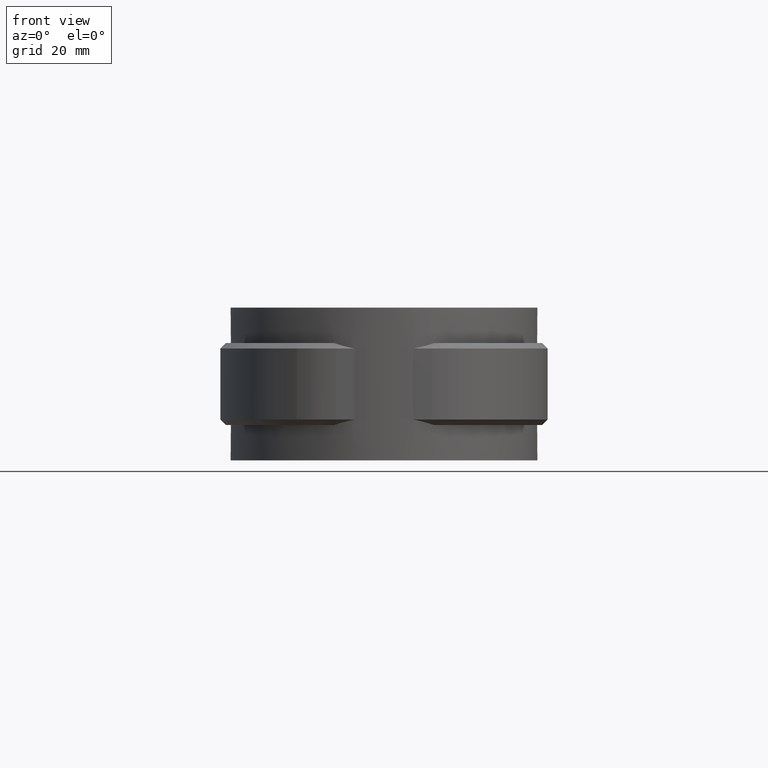
[diagram: clean part render]
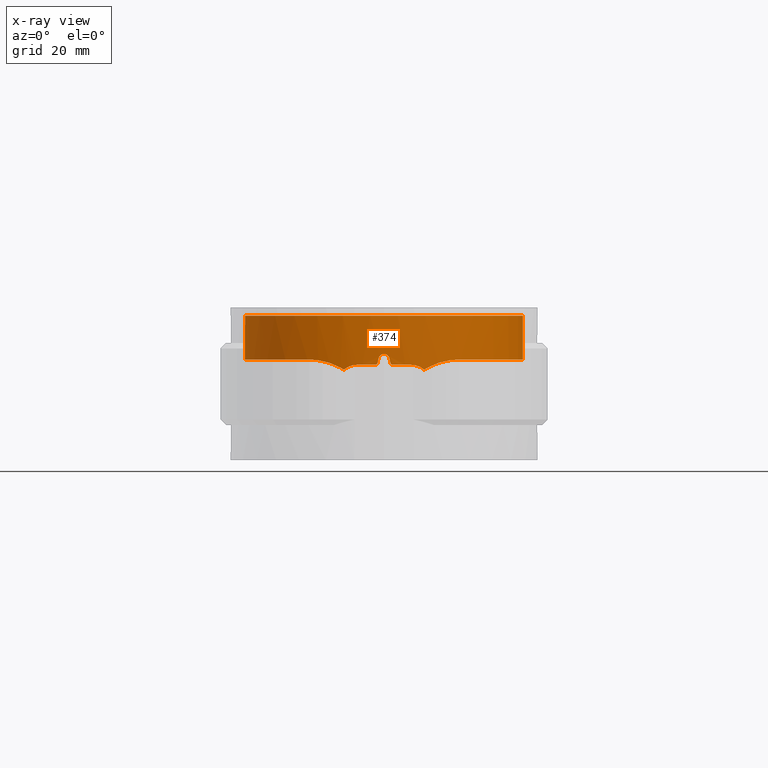
[diagram: x-ray — body ghosted, one internal face saturated and labeled with its STEP entity id]
A machine part, front view, then the same camera in x-ray: the body is ghosted and one INTERNAL B-rep face — a face not visible from any outside direction — is saturated and labeled: STEP entity #374.
In plain terms, the highlighted cylindrical surface (partial cylindrical patch) has radius 25.5 mm, axis along (0, 0, 1).
Its self-contained STEP definition (entity closure, byte-faithful):
#374 = ADVANCED_FACE( '', ( #734 ), #735, .F. );
#734 = FACE_OUTER_BOUND( '', #1649, .T. );
#735 = CYLINDRICAL_SURFACE( '', #1650, 25.5000000000000 );
#1649 = EDGE_LOOP( '', ( #3257, #3258, #3259, #3260, #3261, #3262, #3263, #3264, #3265, #3266, #3267, #3268, #3269, #3270, #3271, #3272, #3273, #3274 ) );
#1650 = AXIS2_PLACEMENT_3D( '', #3275, #3276, #3277 );
#3257 = ORIENTED_EDGE( '', *, *, #6988, .T. );
#3258 = ORIENTED_EDGE( '', *, *, #6953, .T. );
#3259 = ORIENTED_EDGE( '', *, *, #6955, .T. );
#3260 = ORIENTED_EDGE( '', *, *, #6989, .T. );
#3261 = ORIENTED_EDGE( '', *, *, #6990, .T. );
#3262 = ORIENTED_EDGE( '', *, *, #6991, .T. );
#3263 = ORIENTED_EDGE( '', *, *, #6992, .T. );
#3264 = ORIENTED_EDGE( '', *, *, #6993, .T. );
#3265 = ORIENTED_EDGE( '', *, *, #6994, .T. );
#3266 = ORIENTED_EDGE( '', *, *, #6995, .T. );
#3267 = ORIENTED_EDGE( '', *, *, #6996, .T. );
#3268 = ORIENTED_EDGE( '', *, *, #6997, .T. );
#3269 = ORIENTED_EDGE( '', *, *, #6975, .T. );
#3270 = ORIENTED_EDGE( '', *, *, #6998, .F. );
#3271 = ORIENTED_EDGE( '', *, *, #6940, .T. );
#3272 = ORIENTED_EDGE( '', *, *, #6999, .T. );
#3273 = ORIENTED_EDGE( '', *, *, #6971, .T. );
#3274 = ORIENTED_EDGE( '', *, *, #6983, .T. );
#3275 = CARTESIAN_POINT( '', ( 0.000000000000000, 0.000000000000000, 0.000000000000000 ) );
#3276 = DIRECTION( '', ( 0.000000000000000, 0.000000000000000, 1.00000000000000 ) );
#3277 = DIRECTION( '', ( 1.00000000000000, -6.12303176911189E-017, 0.000000000000000 ) );
#6940 = EDGE_CURVE( '', #7938, #7936, #7939, .T. );
#6953 = EDGE_CURVE( '', #7944, #7961, #7963, .T. );
#6955 = EDGE_CURVE( '', #7961, #7964, #7966, .T. );
#6971 = EDGE_CURVE( '', #7994, #7992, #7995, .T. );
#6975 = EDGE_CURVE( '', #8001, #8002, #8003, .T. );
#6983 = EDGE_CURVE( '', #7992, #8015, #8017, .T. );
#6988 = EDGE_CURVE( '', #8015, #7944, #8025, .T. );
#6989 = EDGE_CURVE( '', #7964, #8026, #8027, .T. );
#6990 = EDGE_CURVE( '', #8026, #8028, #8029, .T. );
#6991 = EDGE_CURVE( '', #8028, #8030, #8031, .T. );
#6992 = EDGE_CURVE( '', #8030, #8032, #8033, .T. );
#6993 = EDGE_CURVE( '', #8032, #8034, #8035, .T. );
#6994 = EDGE_CURVE( '', #8034, #8036, #8037, .T. );
#6995 = EDGE_CURVE( '', #8036, #8038, #8039, .T. );
#6996 = EDGE_CURVE( '', #8038, #8040, #8041, .T. );
#6997 = EDGE_CURVE( '', #8040, #8001, #8042, .T. );
#6998 = EDGE_CURVE( '', #7938, #8002, #8043, .T. );
#6999 = EDGE_CURVE( '', #7936, #7994, #8044, .T. );
#7936 = VERTEX_POINT( '', #9702 );
#7938 = VERTEX_POINT( '', #9704 );
#7939 = CIRCLE( '', #9705, 25.5000000000000 );
#7944 = VERTEX_POINT( '', #9711 );
#7961 = VERTEX_POINT( '', #9785 );
#7963 = B_SPLINE_CURVE_WITH_KNOTS( '', 3, ( #9788, #9789, #9790, #9791, #9792, #9793, #9794, #9795, #9796, #9797 ), .UNSPECIFIED., .F., .F., ( 4, 2, 2, 2, 4 ), ( 0.00850208511020804, 0.00915846737097784, 0.00981484963174765, 0.0104712318925175, 0.0111276141532873 ), .UNSPECIFIED. );
#7964 = VERTEX_POINT( '', #9798 );
#7966 = CIRCLE( '', #9801, 25.5000000000000 );
#7992 = VERTEX_POINT( '', #10073 );
#7994 = VERTEX_POINT( '', #10081 );
#7995 = B_SPLINE_CURVE_WITH_KNOTS( '', 3, ( #10082, #10083, #10084, #10085, #10086, #10087, #10088, #10089, #10090, #10091, #10092, #10093, #10094, #10095, #10096, #10097, #10098, #10099, #10100, #10101, #10102, #10103, #10104, #10105, #10106, #10107, #10108, #10109, #10110, #10111, #10112, #10113, #10114, #10115, #10116, #10117, #10118, #10119, #10120, #10121, #10122, #10123 ), .UNSPECIFIED., .F., .F., ( 4, 2, 2, 2, 2, 2, 2, 2, 2, 2, 2, 2, 2, 2, 2, 2, 2, 2, 2, 2, 4 ), ( 3.46944695195361E-018, 0.00367893654871731, 0.00735787309743462, 0.00919734137179327, 0.0110368096461519, 0.0147157461948692, 0.0165552144692279, 0.0183946827435865, 0.0220736192923038, 0.0257525558410211, 0.0294314923897385, 0.0331104289384558, 0.0349498972128144, 0.0367893654871731, 0.0404683020358904, 0.0423077703102490, 0.0441472385846077, 0.0478261751333250, 0.0515051116820423, 0.0551840482307596, 0.0588629847794769 ), .UNSPECIFIED. );
#8001 = VERTEX_POINT( '', #10159 );
#8002 = VERTEX_POINT( '', #10160 );
#8003 = B_SPLINE_CURVE_WITH_KNOTS( '', 3, ( #10161, #10162, #10163, #10164, #10165, #10166, #10167, #10168, #10169, #10170, #10171, #10172, #10173, #10174, #10175, #10176, #10177, #10178, #10179, #10180, #10181, #10182, #10183, #10184, #10185, #10186, #10187, #10188, #10189, #10190, #10191, #10192, #10193, #10194, #10195, #10196, #10197, #10198, #10199, #10200, #10201, #10202 ), .UNSPECIFIED., .F., .F., ( 4, 2, 2, 2, 2, 2, 2, 2, 2, 2, 2, 2, 2, 2, 2, 2, 2, 2, 2, 2, 4 ), ( 9.81307786677359E-018, 0.00367893687146762, 0.00735787374293522, 0.00919734217866903, 0.0110368106144028, 0.0147157474858705, 0.0165552159216043, 0.0183946843573381, 0.0220736212288057, 0.0257525581002733, 0.0294314949717409, 0.0331104318432085, 0.0349499002789423, 0.0367893687146762, 0.0404683055861438, 0.0423077740218776, 0.0441472424576114, 0.0478261793290790, 0.0515051162005466, 0.0551840530720142, 0.0588629899434818 ), .UNSPECIFIED. );
#8015 = VERTEX_POINT( '', #10295 );
#8017 = B_SPLINE_CURVE_WITH_KNOTS( '', 3, ( #10301, #10302, #10303, #10304, #10305, #10306, #10307, #10308, #10309, #10310 ), .UNSPECIFIED., .F., .F., ( 4, 2, 2, 2, 4 ), ( 3.46944695195361E-018, 0.00173657544033169, 0.00347315088066339, 0.00520972632099508, 0.00694630176132677 ), .UNSPECIFIED. );
#8025 = B_SPLINE_CURVE_WITH_KNOTS( '', 3, ( #10337, #10338, #10339, #10340 ), .UNSPECIFIED., .F., .F., ( 4, 4 ), ( 2.30978935673937E-016, 0.000798238028061285 ), .UNSPECIFIED. );
#8026 = VERTEX_POINT( '', #10341 );
#8027 = B_SPLINE_CURVE_WITH_KNOTS( '', 3, ( #10342, #10343, #10344, #10345, #10346, #10347 ), .UNSPECIFIED., .F., .F., ( 4, 2, 4 ), ( 8.20849171219253E-018, 0.000336083199100263, 0.000672166398200517 ), .UNSPECIFIED. );
#8028 = VERTEX_POINT( '', #10348 );
#8029 = ELLIPSE( '', #10349, 116.166725925970, 25.5000000000000 );
#8030 = VERTEX_POINT( '', #10350 );
#8031 = B_SPLINE_CURVE_WITH_KNOTS( '', 3, ( #10351, #10352, #10353, #10354, #10355, #10356, #10357, #10358, #10359, #10360 ), .UNSPECIFIED., .F., .F., ( 4, 2, 2, 2, 4 ), ( 1.08420217248550E-019, 0.000671619266939462, 0.00134323853387892, 0.00201485780081838, 0.00268647706775785 ), .UNSPECIFIED. );
#8032 = VERTEX_POINT( '', #10361 );
#8033 = ELLIPSE( '', #10362, 116.166785185313, 25.5000000000000 );
#8034 = VERTEX_POINT( '', #10363 );
#8035 = B_SPLINE_CURVE_WITH_KNOTS( '', 3, ( #10364, #10365, #10366, #10367, #10368, #10369 ), .UNSPECIFIED., .F., .F., ( 4, 2, 4 ), ( 2.04566856771261E-018, 0.000336089115589765, 0.000672178231179528 ), .UNSPECIFIED. );
#8036 = VERTEX_POINT( '', #10370 );
#8037 = CIRCLE( '', #10371, 25.5000000000000 );
#8038 = VERTEX_POINT( '', #10372 );
#8039 = B_SPLINE_CURVE_WITH_KNOTS( '', 3, ( #10373, #10374, #10375, #10376, #10377, #10378, #10379, #10380, #10381, #10382 ), .UNSPECIFIED., .F., .F., ( 4, 2, 2, 2, 4 ), ( 2.60208521396521E-018, 0.000657020620494566, 0.00131404124098913, 0.00197106186148369, 0.00262808248197826 ), .UNSPECIFIED. );
#8040 = VERTEX_POINT( '', #10383 );
#8041 = B_SPLINE_CURVE_WITH_KNOTS( '', 3, ( #10384, #10385, #10386, #10387 ), .UNSPECIFIED., .F., .F., ( 4, 4 ), ( 0.00811585301675410, 0.00891486322571208 ), .UNSPECIFIED. );
#8042 = B_SPLINE_CURVE_WITH_KNOTS( '', 3, ( #10388, #10389, #10390, #10391, #10392, #10393, #10394, #10395, #10396, #10397 ), .UNSPECIFIED., .F., .F., ( 4, 2, 2, 2, 4 ), ( 1.73472347597681E-018, 0.00172797127034804, 0.00345594254069608, 0.00518391381104412, 0.00691188508139215 ), .UNSPECIFIED. );
#8043 = LINE( '', #10398, #10399 );
#8044 = LINE( '', #10400, #10401 );
#9702 = CARTESIAN_POINT( '', ( 6.02727272727272, 24.7774490912821, 0.000000000000000 ) );
#9704 = CARTESIAN_POINT( '', ( -6.02727272727273, 24.7774490912821, 0.000000000000000 ) );
#9705 = AXIS2_PLACEMENT_3D( '', #13616, #13617, #13618 );
#9711 = CARTESIAN_POINT( '', ( 7.34939546607403, -24.4179521312195, -9.90570993449255 ) );
#9785 = CARTESIAN_POINT( '', ( 5.00000000000000, -25.0049995001000, -9.00000000000000 ) );
#9788 = CARTESIAN_POINT( '', ( 7.34939546607647, -24.4179521312336, -9.90570993449475 ) );
#9789 = CARTESIAN_POINT( '', ( 7.19002830042956, -24.4659189844059, -9.76138663719246 ) );
#9790 = CARTESIAN_POINT( '', ( 7.01934867853847, -24.5155951669858, -9.63330824911260 ) );
#9791 = CARTESIAN_POINT( '', ( 6.65548995696407, -24.6168664881457, -9.40887663097829 ) );
#9792 = CARTESIAN_POINT( '', ( 6.46069820901420, -24.6688392725412, -9.31221188509042 ) );
#9793 = CARTESIAN_POINT( '', ( 6.06217657366655, -24.7697853763839, -9.15823201737013 ) );
#9794 = CARTESIAN_POINT( '', ( 5.85712685122793, -24.8191636452639, -9.09978998882263 ) );
#9795 = CARTESIAN_POINT( '', ( 5.43511411233680, -24.9149825122885, -9.02052155223629 ) );
#9796 = CARTESIAN_POINT( '', ( 5.21770426459036, -24.9614673527409, -8.99999999999997 ) );
#9797 = CARTESIAN_POINT( '', ( 5.00000000000000, -25.0049995001000, -8.99999999999997 ) );
#9798 = CARTESIAN_POINT( '', ( 1.64999999999995, -25.4465616537873, -9.00000000000000 ) );
#9801 = AXIS2_PLACEMENT_3D( '', #13626, #13627, #13628 );
#10073 = CARTESIAN_POINT( '', ( 14.0380773796952, -21.2880807843660, -8.00256714084616 ) );
#10081 = CARTESIAN_POINT( '', ( 6.02727272727272, 24.7774490912821, -8.00435030719461 ) );
#10082 = CARTESIAN_POINT( '', ( 6.02727272727272, 24.7774490912821, -8.00435030719460 ) );
#10083 = CARTESIAN_POINT( '', ( 7.23599043617387, 24.4834207893777, -8.00648047280333 ) );
#10084 = CARTESIAN_POINT( '', ( 8.40833073396198, 24.1050752320822, -8.00960165786446 ) );
#10085 = CARTESIAN_POINT( '', ( 10.6832558674306, 23.1866927729472, -8.01318213386109 ) );
#10086 = CARTESIAN_POINT( '', ( 11.7858329233706, 22.6466378563930, -8.01365063241761 ) );
#10087 = CARTESIAN_POINT( '', ( 13.3862508932498, 21.7126645761644, -8.01194020932682 ) );
#10088 = CARTESIAN_POINT( '', ( 13.9128744927420, 21.3790956027200, -8.01099314390399 ) );
#10089 = CARTESIAN_POINT( '', ( 14.9346540631046, 20.6782473497254, -8.00870389442224 ) );
#10090 = CARTESIAN_POINT( '', ( 15.4301058098800, 20.3110731277476, -8.00736616175202 ) );
#10091 = CARTESIAN_POINT( '', ( 16.8712199239447, 19.1604636138356, -8.00364013782481 ) );
#10092 = CARTESIAN_POINT( '', ( 17.7718715818085, 18.3281911366352, -8.00192910382054 ) );
#10093 = CARTESIAN_POINT( '', ( 19.0326615365575, 16.9819256063667, -8.00325822963941 ) );
#10094 = CARTESIAN_POINT( '', ( 19.4378359745583, 16.5167986474918, -8.00410926809196 ) );
#10095 = CARTESIAN_POINT( '', ( 20.2172730657249, 15.5530053276380, -8.00596291424165 ) );
#10096 = CARTESIAN_POINT( '', ( 20.5911038168385, 15.0544916301788, -8.00696233647980 ) );
#10097 = CARTESIAN_POINT( '', ( 21.6478825447636, 13.5330809457384, -8.00941485428378 ) );
#10098 = CARTESIAN_POINT( '', ( 22.2730579252557, 12.4766092997537, -8.01022551509677 ) );
#10099 = CARTESIAN_POINT( '', ( 23.3678649736153, 10.2809423466617, -8.00918317122034 ) );
#10100 = CARTESIAN_POINT( '', ( 23.8378586430602, 9.14070903084015, -8.00732483371213 ) );
#10101 = CARTESIAN_POINT( '', ( 24.6140797702939, 6.77813715814395, -8.00356538833633 ) );
#10102 = CARTESIAN_POINT( '', ( 24.9115322156420, 5.58301647356335, -8.00198911275021 ) );
#10103 = CARTESIAN_POINT( '', ( 25.3323822198717, 3.16621561827068, -8.00374588587573 ) );
#10104 = CARTESIAN_POINT( '', ( 25.4557627807475, 1.94453246483196, -8.00619494150133 ) );
#10105 = CARTESIAN_POINT( '', ( 25.5073199262339, 0.0916323898620054, -8.00875896915986 ) );
#10106 = CARTESIAN_POINT( '', ( 25.5019716075597, -0.531937079970103, -8.00945183909588 ) );
#10107 = CARTESIAN_POINT( '', ( 25.4460859163681, -1.76924403818120, -8.01022075164433 ) );
#10108 = CARTESIAN_POINT( '', ( 25.3957817943379, -2.38369131147523, -8.01030010625810 ) );
#10109 = CARTESIAN_POINT( '', ( 25.1793005739384, -4.21469945113369, -8.00960044908886 ) );
#10110 = CARTESIAN_POINT( '', ( 24.9478887611008, -5.41898940567201, -8.00777838101161 ) );
#10111 = CARTESIAN_POINT( '', ( 24.4699097122901, -7.20081027566577, -8.00488788943961 ) );
#10112 = CARTESIAN_POINT( '', ( 24.2886897740294, -7.79063256149351, -8.00392447499050 ) );
#10113 = CARTESIAN_POINT( '', ( 23.8813713223785, -8.96183633023490, -8.00263638335562 ) );
#10114 = CARTESIAN_POINT( '', ( 23.6553997221500, -9.54217470382321, -8.00235062104054 ) );
#10115 = CARTESIAN_POINT( '', ( 22.9212815692395, -11.2422856926676, -8.00347753568806 ) );
#10116 = CARTESIAN_POINT( '', ( 22.3541015416671, -12.3308245985621, -8.00625745362341 ) );
#10117 = CARTESIAN_POINT( '', ( 21.0671094039184, -14.4198471690583, -8.01034287151952 ) );
#10118 = CARTESIAN_POINT( '', ( 20.3460259093578, -15.4218763635057, -8.01164285375984 ) );
#10119 = CARTESIAN_POINT( '', ( 18.7496539580305, -17.3275941010177, -8.01098931174753 ) );
#10120 = CARTESIAN_POINT( '', ( 17.8905079229677, -18.2124564405394, -8.00904794289999 ) );
#10121 = CARTESIAN_POINT( '', ( 16.0539679187838, -19.8502885974732, -8.00459418441659 ) );
#10122 = CARTESIAN_POINT( '', ( 15.0765755120066, -20.6032601428188, -8.00207340656820 ) );
#10123 = CARTESIAN_POINT( '', ( 14.0380773796952, -21.2880807843660, -8.00256714084614 ) );
#10159 = CARTESIAN_POINT( '', ( -14.0380773796952, -21.2880807843660, -8.00256714084616 ) );
#10160 = CARTESIAN_POINT( '', ( -6.02727272727275, 24.7774490912821, -8.00435030719460 ) );
#10161 = CARTESIAN_POINT( '', ( -14.0380773796952, -21.2880807843660, -8.00256714084622 ) );
#10162 = CARTESIAN_POINT( '', ( -15.0765748335687, -20.6032605902037, -8.00207340689083 ) );
#10163 = CARTESIAN_POINT( '', ( -16.0523639473271, -19.8513548135207, -8.00459036403530 ) );
#10164 = CARTESIAN_POINT( '', ( -17.8836958658101, -18.2188939952168, -8.00903135403917 ) );
#10165 = CARTESIAN_POINT( '', ( -18.7392252450658, -17.3383246082448, -8.01096774511733 ) );
#10166 = CARTESIAN_POINT( '', ( -19.9303857377763, -15.9188956933257, -8.01148110754755 ) );
#10167 = CARTESIAN_POINT( '', ( -20.3134828182761, -15.4271260931492, -8.01128025687242 ) );
#10168 = CARTESIAN_POINT( '', ( -21.0386748467039, -14.4224812149986, -8.01020889057149 ) );
#10169 = CARTESIAN_POINT( '', ( -21.3810845038201, -13.9096038910828, -8.00934322425378 ) );
#10170 = CARTESIAN_POINT( '', ( -22.3491571729683, -12.3400402561434, -8.00627899012387 ) );
#10171 = CARTESIAN_POINT( '', ( -22.9159649377144, -11.2525798041515, -8.00350407266921 ) );
#10172 = CARTESIAN_POINT( '', ( -23.6482491570491, -9.55972343349782, -8.00235259351094 ) );
#10173 = CARTESIAN_POINT( '', ( -23.8726141413114, -8.98512090568258, -8.00261977236998 ) );
#10174 = CARTESIAN_POINT( '', ( -24.2809248362162, -7.81478040175771, -8.00388927620166 ) );
#10175 = CARTESIAN_POINT( '', ( -24.4645155229831, -7.21933194521091, -8.00485791612356 ) );
#10176 = CARTESIAN_POINT( '', ( -24.9456398910394, -5.43048289420762, -8.00775959323832 ) );
#10177 = CARTESIAN_POINT( '', ( -25.1774584165853, -4.22498207278109, -8.00958799193542 ) );
#10178 = CARTESIAN_POINT( '', ( -25.4667570883330, -1.78862216190127, -8.01053593061586 ) );
#10179 = CARTESIAN_POINT( '', ( -25.5242275512407, -0.556664814739370, -8.00964804073775 ) );
#10180 = CARTESIAN_POINT( '', ( -25.4572985075182, 1.92925387199237, -8.00622397376219 ) );
#10181 = CARTESIAN_POINT( '', ( -25.3338276137651, 3.15463021899782, -8.00376500142650 ) );
#10182 = CARTESIAN_POINT( '', ( -24.9140823583699, 5.57162576120669, -8.00198679981767 ) );
#10183 = CARTESIAN_POINT( '', ( -24.6177909264119, 6.76324171536864, -8.00354427372976 ) );
#10184 = CARTESIAN_POINT( '', ( -24.0407996273683, 8.52477098965043, -8.00634346301506 ) );
#10185 = CARTESIAN_POINT( '', ( -23.8252540906671, 9.10992766866603, -8.00731782038835 ) );
#10186 = CARTESIAN_POINT( '', ( -23.3549453192577, 10.2557322384927, -8.00886216294284 ) );
#10187 = CARTESIAN_POINT( '', ( -23.1001622816006, 10.8171263074039, -8.00943360835258 ) );
#10188 = CARTESIAN_POINT( '', ( -22.2782570688612, 12.4675634315691, -8.01022930180090 ) );
#10189 = CARTESIAN_POINT( '', ( -21.6538720806443, 13.5230333142732, -8.00942431553697 ) );
#10190 = CARTESIAN_POINT( '', ( -20.6024251696231, 15.0388905393996, -8.00699078506972 ) );
#10191 = CARTESIAN_POINT( '', ( -20.2327247852361, 15.5329087892142, -8.00600289559682 ) );
#10192 = CARTESIAN_POINT( '', ( -19.4539299472975, 16.4978488687100, -8.00414443728875 ) );
#10193 = CARTESIAN_POINT( '', ( -19.0453063875102, 16.9678325370193, -8.00327935129466 ) );
#10194 = CARTESIAN_POINT( '', ( -17.7803400055229, 18.3203071721486, -8.00192275643557 ) );
#10195 = CARTESIAN_POINT( '', ( -16.8789739270039, 19.1534679280417, -8.00362196790979 ) );
#10196 = CARTESIAN_POINT( '', ( -14.9622992328879, 20.6853739672388, -8.00857382474504 ) );
#10197 = CARTESIAN_POINT( '', ( -13.9452719100082, 21.3851451340507, -8.01132449803803 ) );
#10198 = CARTESIAN_POINT( '', ( -11.7992644014956, 22.6400618513306, -8.01365421465965 ) );
#10199 = CARTESIAN_POINT( '', ( -10.6918342745611, 23.1829359891876, -8.01319224678382 ) );
#10200 = CARTESIAN_POINT( '', ( -8.41019594682173, 24.1046146073633, -8.00960796655416 ) );
#10201 = CARTESIAN_POINT( '', ( -7.23598862404177, 24.4834212301904, -8.00648046960975 ) );
#10202 = CARTESIAN_POINT( '', ( -6.02727272727273, 24.7774490912821, -8.00435030719461 ) );
#10295 = CARTESIAN_POINT( '', ( 8.00834492137894, -24.2098412142710, -9.50509198069079 ) );
#10301 = CARTESIAN_POINT( '', ( 14.0380773796952, -21.2880807843660, -8.00256714084617 ) );
#10302 = CARTESIAN_POINT( '', ( 13.5533081799099, -21.6077539200897, -8.01158658802493 ) );
#10303 = CARTESIAN_POINT( '', ( 13.0599904453706, -21.9093280854432, -8.04374183318711 ) );
#10304 = CARTESIAN_POINT( '', ( 12.0570345764823, -22.4768753346694, -8.15898000554412 ) );
#10305 = CARTESIAN_POINT( '', ( 11.5460437637076, -22.7433785813847, -8.24235852946532 ) );
#10306 = CARTESIAN_POINT( '', ( 10.5222652635921, -23.2347655381380, -8.47099233953589 ) );
#10307 = CARTESIAN_POINT( '', ( 10.0056174788121, -23.4614129377732, -8.61688839015065 ) );
#10308 = CARTESIAN_POINT( '', ( 8.98850884475527, -23.8695828810807, -8.99045959509709 ) );
#10309 = CARTESIAN_POINT( '', ( 8.48867257435765, -24.0509541944727, -9.21620899507361 ) );
#10310 = CARTESIAN_POINT( '', ( 8.00834492137896, -24.2098412142711, -9.50509198069114 ) );
#10337 = CARTESIAN_POINT( '', ( 8.00834492137897, -24.2098412142712, -9.50509198069118 ) );
#10338 = CARTESIAN_POINT( '', ( 7.78678672940039, -24.2831301881979, -9.63391701784471 ) );
#10339 = CARTESIAN_POINT( '', ( 7.56687878413544, -24.3524932875475, -9.76706377273428 ) );
#10340 = CARTESIAN_POINT( '', ( 7.34939546609056, -24.4179521312293, -9.90570993451342 ) );
#10341 = CARTESIAN_POINT( '', ( 1.16219499999999, -25.4735019732658, -8.60975599999999 ) );
#10342 = CARTESIAN_POINT( '', ( 1.64999999999995, -25.4465616537873, -8.99999999999995 ) );
#10343 = CARTESIAN_POINT( '', ( 1.53659991012920, -25.4539147158958, -9.00000000048666 ) );
#10344 = CARTESIAN_POINT( '', ( 1.42648680398588, -25.4602242781617, -8.96144237442400 ) );
#10345 = CARTESIAN_POINT( '', ( 1.24913749967912, -25.4695414250657, -8.81968188091255 ) );
#10346 = CARTESIAN_POINT( '', ( 1.18713991437309, -25.4723638943793, -8.72062228832456 ) );
#10347 = CARTESIAN_POINT( '', ( 1.16219499999999, -25.4735019732658, -8.60975599999999 ) );
#10348 = CARTESIAN_POINT( '', ( 0.975609757981813, -25.4813301379683, -7.78048781325256 ) );
#10349 = AXIS2_PLACEMENT_3D( '', #13629, #13630, #13631 );
#10350 = CARTESIAN_POINT( '', ( -0.975610000000026, -25.4813301287021, -7.78048800000004 ) );
#10351 = CARTESIAN_POINT( '', ( 0.975609757981816, -25.4813301379683, -7.78048781325256 ) );
#10352 = CARTESIAN_POINT( '', ( 0.925760627941450, -25.4832387234868, -7.55893621431624 ) );
#10353 = CARTESIAN_POINT( '', ( 0.802002231077809, -25.4880019776319, -7.36098152789277 ) );
#10354 = CARTESIAN_POINT( '', ( 0.447412249788038, -25.4966914455417, -7.07730044565886 ) );
#10355 = CARTESIAN_POINT( '', ( 0.227096997064036, -25.5000000081517, -6.99999981140865 ) );
#10356 = CARTESIAN_POINT( '', ( -0.227098827707840, -25.4999999918483, -7.00000018172440 ) );
#10357 = CARTESIAN_POINT( '', ( -0.447442086841618, -25.4966908125914, -7.07731897433820 ) );
#10358 = CARTESIAN_POINT( '', ( -0.802000627794619, -25.4880019186867, -7.36098526735058 ) );
#10359 = CARTESIAN_POINT( '', ( -0.925760910065686, -25.4832387131592, -7.55893638128833 ) );
#10360 = CARTESIAN_POINT( '', ( -0.975610000000027, -25.4813301287021, -7.78048800000004 ) );
#10361 = CARTESIAN_POINT( '', ( -1.16219512100914, -25.4735019677449, -8.60975609337373 ) );
#10362 = AXIS2_PLACEMENT_3D( '', #13632, #13633, #13634 );
#10363 = CARTESIAN_POINT( '', ( -1.65000000000003, -25.4465616537873, -9.00000000000000 ) );
#10364 = CARTESIAN_POINT( '', ( -1.16219512100915, -25.4735019677449, -8.60975609337372 ) );
#10365 = CARTESIAN_POINT( '', ( -1.18714002699007, -25.4723638891226, -8.72062234662147 ) );
#10366 = CARTESIAN_POINT( '', ( -1.24913144108472, -25.4695417339208, -8.81967596727058 ) );
#10367 = CARTESIAN_POINT( '', ( -1.42648745791825, -25.4602242532433, -8.96144389594983 ) );
#10368 = CARTESIAN_POINT( '', ( -1.53659994153400, -25.4539147138594, -8.99999999999994 ) );
#10369 = CARTESIAN_POINT( '', ( -1.65000000000003, -25.4465616537873, -8.99999999999994 ) );
#10370 = CARTESIAN_POINT( '', ( -5.00000000000005, -25.0049995001000, -9.00000000000000 ) );
#10371 = AXIS2_PLACEMENT_3D( '', #13635, #13636, #13637 );
#10372 = CARTESIAN_POINT( '', ( -7.34939546607936, -24.4179521312217, -9.90570993449727 ) );
#10373 = CARTESIAN_POINT( '', ( -5.00000000000005, -25.0049995001000, -8.99999999999997 ) );
#10374 = CARTESIAN_POINT( '', ( -5.21789844744591, -24.9614285239348, -8.99999999999997 ) );
#10375 = CARTESIAN_POINT( '', ( -5.43179761623777, -24.9156980240702, -9.02016546210309 ) );
#10376 = CARTESIAN_POINT( '', ( -5.85208480869495, -24.8203452184345, -9.09858131490400 ) );
#10377 = CARTESIAN_POINT( '', ( -6.05973397163828, -24.7703977474211, -9.15734011687089 ) );
#10378 = CARTESIAN_POINT( '', ( -6.46167704070207, -24.6685976535784, -9.31253840593970 ) );
#10379 = CARTESIAN_POINT( '', ( -6.65277635996363, -24.6175976341052, -9.40745746389647 ) );
#10380 = CARTESIAN_POINT( '', ( -7.01605676002254, -24.5165351163359, -9.63102733125049 ) );
#10381 = CARTESIAN_POINT( '', ( -7.18977934866886, -24.4659939147249, -9.76116118586488 ) );
#10382 = CARTESIAN_POINT( '', ( -7.34939546608096, -24.4179521312322, -9.90570993449872 ) );
#10383 = CARTESIAN_POINT( '', ( -8.00834492137897, -24.2098412142712, -9.50509198069118 ) );
#10384 = CARTESIAN_POINT( '', ( -7.34939546609135, -24.4179521312291, -9.90570993451290 ) );
#10385 = CARTESIAN_POINT( '', ( -7.56702074644256, -24.3524505592658, -9.76697327140675 ) );
#10386 = CARTESIAN_POINT( '', ( -7.78692269222753, -24.2830852132141, -9.63383796224265 ) );
#10387 = CARTESIAN_POINT( '', ( -8.00834492137897, -24.2098412142712, -9.50509198069118 ) );
#10388 = CARTESIAN_POINT( '', ( -8.00834492137897, -24.2098412142712, -9.50509198069118 ) );
#10389 = CARTESIAN_POINT( '', ( -8.48983332359675, -24.0505702315961, -9.21551088680596 ) );
#10390 = CARTESIAN_POINT( '', ( -8.98884999455235, -23.8693963122353, -8.99045015204694 ) );
#10391 = CARTESIAN_POINT( '', ( -10.0012845353573, -23.4632012346555, -8.61836442464061 ) );
#10392 = CARTESIAN_POINT( '', ( -10.5175586698763, -23.2369189913460, -8.47219902970378 ) );
#10393 = CARTESIAN_POINT( '', ( -11.5430829606839, -22.7449044919392, -8.24286530814062 ) );
#10394 = CARTESIAN_POINT( '', ( -12.0531284718486, -22.4790097879914, -8.15951322728733 ) );
#10395 = CARTESIAN_POINT( '', ( -13.0588333618892, -21.9100583804314, -8.04379078831736 ) );
#10396 = CARTESIAN_POINT( '', ( -13.5529697894653, -21.6079770661447, -8.01159288399985 ) );
#10397 = CARTESIAN_POINT( '', ( -14.0380773796952, -21.2880807843660, -8.00256714084614 ) );
#10398 = CARTESIAN_POINT( '', ( -6.02727272727273, 24.7774490912821, 0.000000000000000 ) );
#10399 = VECTOR( '', #13638, 1000.00000000000 );
#10400 = CARTESIAN_POINT( '', ( 6.02727272727272, 24.7774490912821, 0.000000000000000 ) );
#10401 = VECTOR( '', #13639, 1000.00000000000 );
#13616 = CARTESIAN_POINT( '', ( 0.000000000000000, 0.000000000000000, 0.000000000000000 ) );
#13617 = DIRECTION( '', ( 0.000000000000000, 0.000000000000000, 1.00000000000000 ) );
#13618 = DIRECTION( '', ( 1.00000000000000, -6.12303176911189E-017, 0.000000000000000 ) );
#13626 = CARTESIAN_POINT( '', ( 0.000000000000000, 0.000000000000000, -9.00000000000001 ) );
#13627 = DIRECTION( '', ( 6.12303176911189E-017, -3.13145149531439E-016, -1.00000000000000 ) );
#13628 = DIRECTION( '', ( 0.000000000000000, 1.00000000000000, -3.13145149531439E-016 ) );
#13629 = CARTESIAN_POINT( '', ( 0.000000000000000, 0.000000000000000, -3.44444212055032 ) );
#13630 = DIRECTION( '', ( -0.975609781292647, -1.70596433957388E-016, -0.219512083143762 ) );
#13631 = DIRECTION( '', ( 0.219512083143762, 3.83841770684855E-017, -0.975609781292647 ) );
#13632 = CARTESIAN_POINT( '', ( 0.000000000000000, 0.000000000000000, -3.44443890776446 ) );
#13633 = DIRECTION( '', ( 0.975609806487711, 3.31181834532395E-017, -0.219511971165610 ) );
#13634 = DIRECTION( '', ( -0.219511971165610, -7.45158328965245E-018, -0.975609806487711 ) );
#13635 = CARTESIAN_POINT( '', ( 0.000000000000000, 0.000000000000000, -9.00000000000001 ) );
#13636 = DIRECTION( '', ( 6.12303176911189E-017, -3.13145149531439E-016, -1.00000000000000 ) );
#13637 = DIRECTION( '', ( 0.000000000000000, 1.00000000000000, -3.13145149531439E-016 ) );
#13638 = DIRECTION( '', ( 0.000000000000000, 0.000000000000000, -1.00000000000000 ) );
#13639 = DIRECTION( '', ( 0.000000000000000, 0.000000000000000, -1.00000000000000 ) );